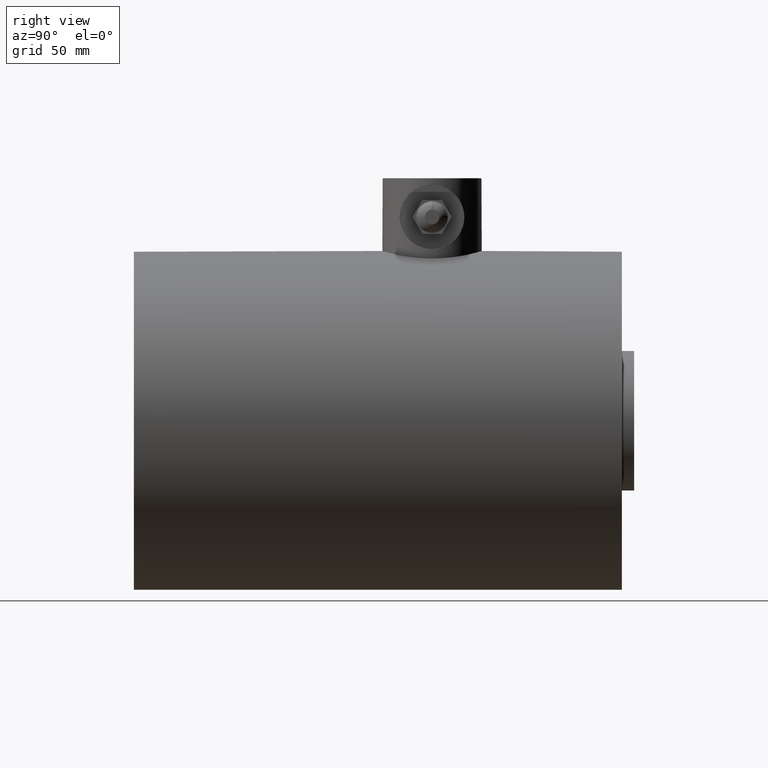
[diagram: clean part render]
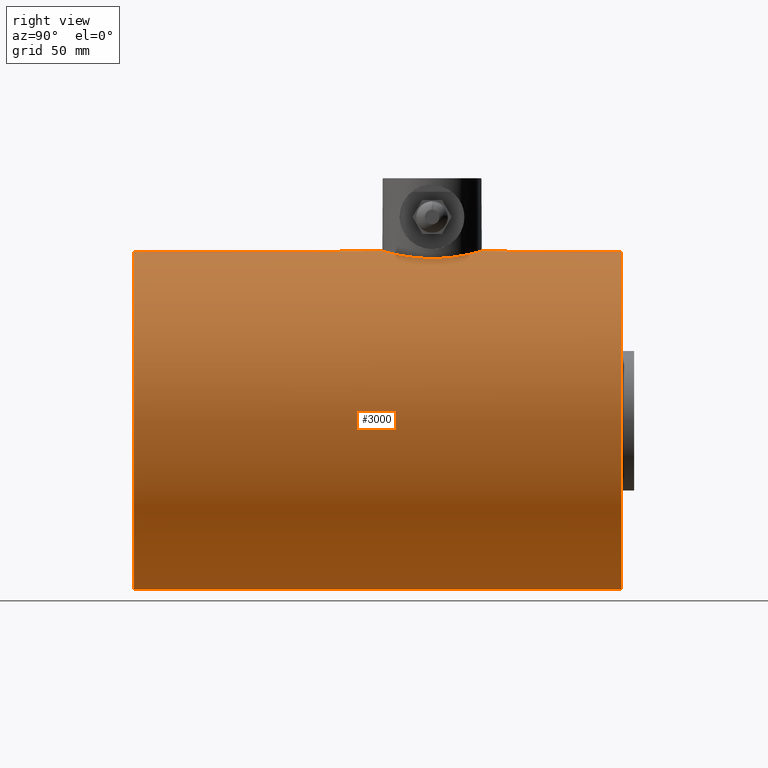
[diagram: same view with one face highlighted and labeled with its STEP entity id]
A machine part, right view. The second image highlights one B-rep face of the part: STEP entity #3000.
In plain terms, the highlighted cylindrical surface (bore or boss wall) has radius 69.977 mm, axis along (0, -1, 0).
Its self-contained STEP definition (entity closure, byte-faithful):
#262=B_SPLINE_CURVE_WITH_KNOTS('',3,(#16588,#16589,#16590,#16591,#16592,
#16593,#16594,#16595,#16596,#16597,#16598,#16599,#16600,#16601,#16602,#16603,
#16604,#16605,#16606,#16607,#16608,#16609,#16610,#16611,#16612,#16613,#16614,
#16615,#16616,#16617,#16618,#16619,#16620,#16621,#16622,#16623,#16624,#16625,
#16626,#16627,#16628,#16629,#16630,#16631,#16632,#16633,#16634,#16635,#16636,
#16637,#16638,#16639,#16640,#16641,#16642,#16643,#16644,#16645,#16646,#16647,
#16648,#16649,#16650,#16651,#16652,#16653),.UNSPECIFIED.,.T.,.F.,(4,2,2,
2,2,2,2,2,2,2,2,2,2,2,2,2,2,2,2,2,2,2,2,2,2,2,2,2,2,2,2,2,4),(0.,0.388627741822901,
0.777255483645803,1.1658832254687,1.55451096729161,1.9430338723524,2.3315567774132,
2.720079682474,3.1086025875348,3.49712549259559,3.88564839765639,4.27417130271719,
4.66269420777799,5.05132194960089,5.43994969142379,5.82857743324669,6.21720517506959,
6.60583291689249,6.9944606587154,7.3830884005383,7.7717161423612,8.160239047422,
8.54876195248279,8.93728485754359,9.32580776260439,9.71433066766519,10.102853572726,
10.4913764777868,10.8798993828476,11.2685271246705,11.6571548664934,12.0457826083163,
12.4344103501392),.UNSPECIFIED.);
#284=FACE_BOUND('',#674,.T.);
#487=FACE_OUTER_BOUND('',#673,.T.);
#673=EDGE_LOOP('',(#2691,#2692,#2693,#2694,#2695,#2696));
#674=EDGE_LOOP('',(#2697));
#837=LINE('',#16688,#1000);
#1000=VECTOR('',#3832,2.755);
#1041=CIRCLE('',#3215,2.755);
#1042=CIRCLE('',#3216,2.755);
#1051=CIRCLE('',#3230,2.755);
#1052=CIRCLE('',#3231,2.755);
#1335=VERTEX_POINT('',#16586);
#1336=VERTEX_POINT('',#16656);
#1337=VERTEX_POINT('',#16657);
#1346=VERTEX_POINT('',#16683);
#1347=VERTEX_POINT('',#16684);
#1782=EDGE_CURVE('',#1335,#1335,#262,.T.);
#1783=EDGE_CURVE('',#1336,#1337,#1041,.T.);
#1784=EDGE_CURVE('',#1337,#1336,#1042,.T.);
#1795=EDGE_CURVE('',#1346,#1347,#1051,.T.);
#1796=EDGE_CURVE('',#1347,#1346,#1052,.T.);
#1797=EDGE_CURVE('',#1337,#1347,#837,.T.);
#2691=ORIENTED_EDGE('',*,*,#1783,.F.);
#2692=ORIENTED_EDGE('',*,*,#1784,.F.);
#2693=ORIENTED_EDGE('',*,*,#1797,.T.);
#2694=ORIENTED_EDGE('',*,*,#1796,.T.);
#2695=ORIENTED_EDGE('',*,*,#1795,.T.);
#2696=ORIENTED_EDGE('',*,*,#1797,.F.);
#2697=ORIENTED_EDGE('',*,*,#1782,.T.);
#2827=CYLINDRICAL_SURFACE('',#3232,2.755);
#3000=ADVANCED_FACE('',(#487,#284),#2827,.T.);
#3215=AXIS2_PLACEMENT_3D('',#16658,#3794,#3795);
#3216=AXIS2_PLACEMENT_3D('',#16659,#3796,#3797);
#3230=AXIS2_PLACEMENT_3D('',#16685,#3826,#3827);
#3231=AXIS2_PLACEMENT_3D('',#16686,#3828,#3829);
#3232=AXIS2_PLACEMENT_3D('',#16687,#3830,#3831);
#3794=DIRECTION('center_axis',(0.,-1.,0.));
#3795=DIRECTION('ref_axis',(1.,0.,0.));
#3796=DIRECTION('center_axis',(0.,-1.,0.));
#3797=DIRECTION('ref_axis',(1.,0.,0.));
#3826=DIRECTION('center_axis',(0.,-1.,0.));
#3827=DIRECTION('ref_axis',(1.,0.,0.));
#3828=DIRECTION('center_axis',(0.,-1.,0.));
#3829=DIRECTION('ref_axis',(1.,0.,0.));
#3830=DIRECTION('center_axis',(0.,-1.,0.));
#3831=DIRECTION('ref_axis',(1.,0.,0.));
#3832=DIRECTION('',(0.,1.,0.));
#16586=CARTESIAN_POINT('',(-0.807086614173229,4.84,2.63412911551852));
#16588=CARTESIAN_POINT('Ctrl Pts',(-0.807086614173229,4.84,2.63412911551852));
#16589=CARTESIAN_POINT('Ctrl Pts',(-0.807086614173229,4.89100101598726,
2.63412911551852));
#16590=CARTESIAN_POINT('Ctrl Pts',(-0.80217449478201,4.94364063398978,2.63565104719803));
#16591=CARTESIAN_POINT('Ctrl Pts',(-0.781599617350357,5.04815220244133,
2.64182558105333));
#16592=CARTESIAN_POINT('Ctrl Pts',(-0.765942407330718,5.10002558043531,
2.64647250484422));
#16593=CARTESIAN_POINT('Ctrl Pts',(-0.724670332624518,5.19935222881661,
2.65807023317607));
#16594=CARTESIAN_POINT('Ctrl Pts',(-0.699022705028526,5.24689033274214,
2.66501817666907));
#16595=CARTESIAN_POINT('Ctrl Pts',(-0.63987091118204,5.33472992855472,2.67983578620687));
#16596=CARTESIAN_POINT('Ctrl Pts',(-0.606362033111009,5.37503080266255,
2.68769030067154));
#16597=CARTESIAN_POINT('Ctrl Pts',(-0.5350404238687,5.44635241190486,2.70279209251901));
#16598=CARTESIAN_POINT('Ctrl Pts',(-0.494744070760986,5.47986016601963,
2.71057843401217));
#16599=CARTESIAN_POINT('Ctrl Pts',(-0.406901807497361,5.53901619919493,
2.72514918151638));
#16600=CARTESIAN_POINT('Ctrl Pts',(-0.359356516363402,5.56466875539157,
2.73191995107714));
#16601=CARTESIAN_POINT('Ctrl Pts',(-0.260015656409129,5.605946326615,2.74315795810324));
#16602=CARTESIAN_POINT('Ctrl Pts',(-0.208135472984882,5.62160412567748,
2.74762518663628));
#16603=CARTESIAN_POINT('Ctrl Pts',(-0.103621910610585,5.64217696553561,
2.75354808220135));
#16604=CARTESIAN_POINT('Ctrl Pts',(-0.0509872578819944,5.64708661417323,
2.755));
#16605=CARTESIAN_POINT('Ctrl Pts',(0.0509872578819944,5.64708661417323,
2.755));
#16606=CARTESIAN_POINT('Ctrl Pts',(0.103621910610585,5.64217696553561,2.75354808220135));
#16607=CARTESIAN_POINT('Ctrl Pts',(0.208135472984882,5.62160412567748,2.74762518663628));
#16608=CARTESIAN_POINT('Ctrl Pts',(0.260015656409129,5.605946326615,2.74315795810324));
#16609=CARTESIAN_POINT('Ctrl Pts',(0.359356516363403,5.56466875539157,2.73191995107714));
#16610=CARTESIAN_POINT('Ctrl Pts',(0.406901807497361,5.53901619919493,2.72514918151638));
#16611=CARTESIAN_POINT('Ctrl Pts',(0.494744070760985,5.47986016601963,2.71057843401217));
#16612=CARTESIAN_POINT('Ctrl Pts',(0.5350404238687,5.44635241190486,2.70279209251901));
#16613=CARTESIAN_POINT('Ctrl Pts',(0.606362033111009,5.37503080266255,2.68769030067154));
#16614=CARTESIAN_POINT('Ctrl Pts',(0.63987091118204,5.33472992855472,2.67983578620687));
#16615=CARTESIAN_POINT('Ctrl Pts',(0.699022705028526,5.24689033274214,2.66501817666907));
#16616=CARTESIAN_POINT('Ctrl Pts',(0.724670332624518,5.19935222881661,2.65807023317607));
#16617=CARTESIAN_POINT('Ctrl Pts',(0.765942407330719,5.10002558043531,2.64647250484422));
#16618=CARTESIAN_POINT('Ctrl Pts',(0.781599617350357,5.04815220244133,2.64182558105333));
#16619=CARTESIAN_POINT('Ctrl Pts',(0.80217449478201,4.94364063398978,2.63565104719803));
#16620=CARTESIAN_POINT('Ctrl Pts',(0.807086614173229,4.89100101598726,2.63412911551852));
#16621=CARTESIAN_POINT('Ctrl Pts',(0.807086614173229,4.78899898401274,2.63412911551852));
#16622=CARTESIAN_POINT('Ctrl Pts',(0.80217449478201,4.73635936601022,2.63565104719803));
#16623=CARTESIAN_POINT('Ctrl Pts',(0.781599617350357,4.63184779755867,2.64182558105333));
#16624=CARTESIAN_POINT('Ctrl Pts',(0.765942407330718,4.57997441956469,2.64647250484422));
#16625=CARTESIAN_POINT('Ctrl Pts',(0.724670332624518,4.48064777118339,2.65807023317607));
#16626=CARTESIAN_POINT('Ctrl Pts',(0.699022705028526,4.43310966725786,2.66501817666907));
#16627=CARTESIAN_POINT('Ctrl Pts',(0.63987091118204,4.34527007144528,2.67983578620687));
#16628=CARTESIAN_POINT('Ctrl Pts',(0.606362033111009,4.30496919733745,2.68769030067154));
#16629=CARTESIAN_POINT('Ctrl Pts',(0.5350404238687,4.23364758809514,2.70279209251901));
#16630=CARTESIAN_POINT('Ctrl Pts',(0.494744070760985,4.20013983398037,2.71057843401217));
#16631=CARTESIAN_POINT('Ctrl Pts',(0.40690180749736,4.14098380080507,2.72514918151638));
#16632=CARTESIAN_POINT('Ctrl Pts',(0.359356516363403,4.11533124460843,2.73191995107714));
#16633=CARTESIAN_POINT('Ctrl Pts',(0.26001565640913,4.074053673385,2.74315795810324));
#16634=CARTESIAN_POINT('Ctrl Pts',(0.208135472984883,4.05839587432252,2.74762518663628));
#16635=CARTESIAN_POINT('Ctrl Pts',(0.103621910610585,4.03782303446439,2.75354808220135));
#16636=CARTESIAN_POINT('Ctrl Pts',(0.0509872578819945,4.03291338582677,
2.755));
#16637=CARTESIAN_POINT('Ctrl Pts',(-0.0509872578819944,4.03291338582677,
2.755));
#16638=CARTESIAN_POINT('Ctrl Pts',(-0.103621910610585,4.03782303446439,
2.75354808220135));
#16639=CARTESIAN_POINT('Ctrl Pts',(-0.208135472984883,4.05839587432252,
2.74762518663628));
#16640=CARTESIAN_POINT('Ctrl Pts',(-0.26001565640913,4.074053673385,2.74315795810324));
#16641=CARTESIAN_POINT('Ctrl Pts',(-0.359356516363403,4.11533124460843,
2.73191995107714));
#16642=CARTESIAN_POINT('Ctrl Pts',(-0.40690180749736,4.14098380080507,2.72514918151638));
#16643=CARTESIAN_POINT('Ctrl Pts',(-0.494744070760985,4.20013983398037,
2.71057843401217));
#16644=CARTESIAN_POINT('Ctrl Pts',(-0.5350404238687,4.23364758809514,2.70279209251901));
#16645=CARTESIAN_POINT('Ctrl Pts',(-0.606362033111009,4.30496919733745,
2.68769030067154));
#16646=CARTESIAN_POINT('Ctrl Pts',(-0.63987091118204,4.34527007144528,2.67983578620687));
#16647=CARTESIAN_POINT('Ctrl Pts',(-0.699022705028526,4.43310966725786,
2.66501817666907));
#16648=CARTESIAN_POINT('Ctrl Pts',(-0.724670332624518,4.48064777118339,
2.65807023317607));
#16649=CARTESIAN_POINT('Ctrl Pts',(-0.765942407330718,4.57997441956469,
2.64647250484422));
#16650=CARTESIAN_POINT('Ctrl Pts',(-0.781599617350357,4.63184779755867,
2.64182558105333));
#16651=CARTESIAN_POINT('Ctrl Pts',(-0.80217449478201,4.73635936601022,2.63565104719803));
#16652=CARTESIAN_POINT('Ctrl Pts',(-0.807086614173229,4.78899898401274,
2.63412911551852));
#16653=CARTESIAN_POINT('Ctrl Pts',(-0.807086614173229,4.84,2.63412911551852));
#16656=CARTESIAN_POINT('',(2.755,0.,0.));
#16657=CARTESIAN_POINT('',(-2.755,0.,-3.37390193165096E-16));
#16658=CARTESIAN_POINT('Origin',(-1.94109474709895E-32,0.,0.));
#16659=CARTESIAN_POINT('Origin',(-1.94109474709895E-32,0.,0.));
#16683=CARTESIAN_POINT('',(2.755,7.92,0.));
#16684=CARTESIAN_POINT('',(-2.755,7.92,-3.37390193165096E-16));
#16685=CARTESIAN_POINT('Origin',(-1.94109474709895E-32,7.92,0.));
#16686=CARTESIAN_POINT('Origin',(-1.94109474709895E-32,7.92,0.));
#16687=CARTESIAN_POINT('Origin',(-1.94109474709895E-32,3.96,0.));
#16688=CARTESIAN_POINT('',(-2.755,3.96,-3.37390193165096E-16));